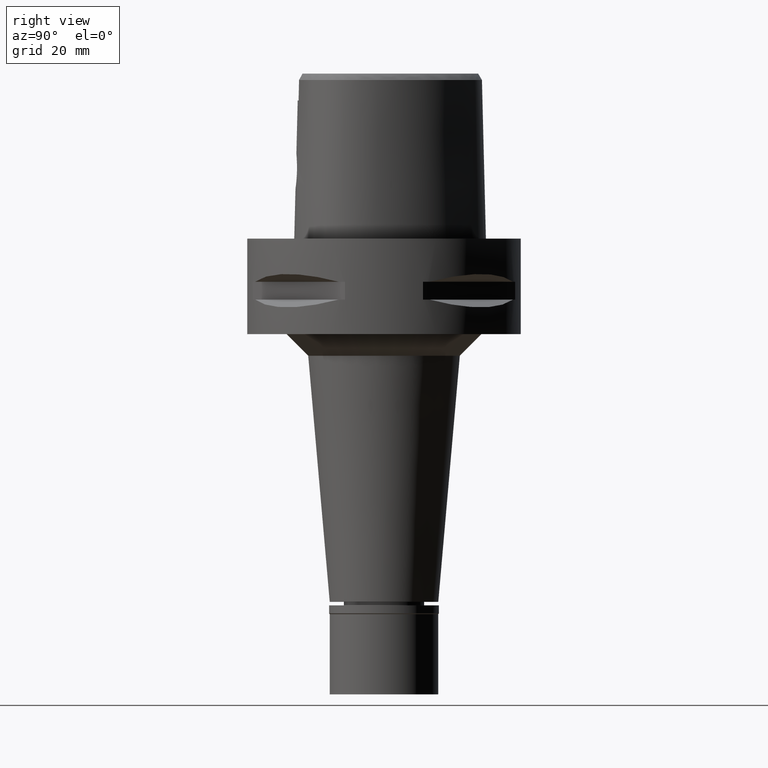
[diagram: clean part render]
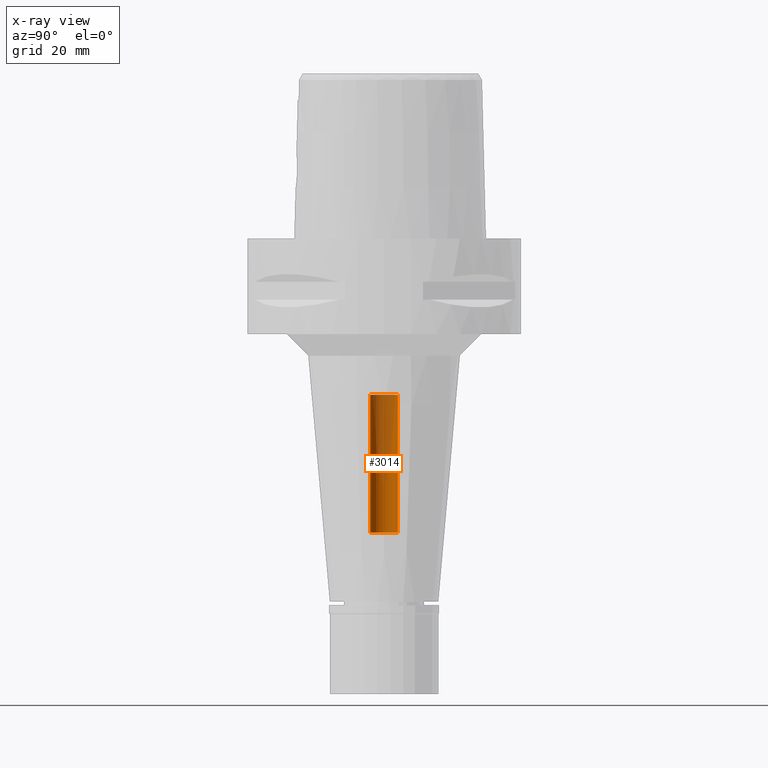
[diagram: x-ray — body ghosted, one internal face saturated and labeled with its STEP entity id]
A machine part, right view, then the same camera in x-ray: the body is ghosted and one INTERNAL B-rep face — a face not visible from any outside direction — is saturated and labeled: STEP entity #3014.
In plain terms, the highlighted cylindrical surface (edge-blend (fillet) strip) has radius 3.2 mm, axis along (0, 0, -1).
Its self-contained STEP definition (entity closure, byte-faithful):
#80 = CARTESIAN_POINT ( 'NONE',  ( 0.0000000000000000000, -3.200000000000000178, -67.79999999999999716 ) ) ;
#391 = DIRECTION ( 'NONE',  ( 0.0000000000000000000, 1.000000000000000000, 0.0000000000000000000 ) ) ;
#792 = VERTEX_POINT ( 'NONE', #3614 ) ;
#859 = VERTEX_POINT ( 'NONE', #4902 ) ;
#909 = CARTESIAN_POINT ( 'NONE',  ( 0.0000000000000000000, -3.200000000000000178, -36.00000000000000000 ) ) ;
#1068 = CARTESIAN_POINT ( 'NONE',  ( 0.0000000000000000000, 3.200000000000000178, -67.79999999999999716 ) ) ;
#1661 = LINE ( 'NONE', #80, #4301 ) ;
#1675 = EDGE_CURVE ( 'NONE', #3131, #859, #3320, .T. ) ;
#1704 = CIRCLE ( 'NONE', #4873, 3.200000000000000178 ) ;
#1770 = CYLINDRICAL_SURFACE ( 'NONE', #3666, 3.200000000000000178 ) ;
#2002 = EDGE_LOOP ( 'NONE', ( #4463, #3311, #3688, #3379 ) ) ;
#2178 = CARTESIAN_POINT ( 'NONE',  ( 0.0000000000000000000, 0.0000000000000000000, 4.939999999999999503 ) ) ;
#2511 = VECTOR ( 'NONE', #2956, 1000.000000000000000 ) ;
#2898 = DIRECTION ( 'NONE',  ( 0.0000000000000000000, 0.0000000000000000000, -1.000000000000000000 ) ) ;
#2956 = DIRECTION ( 'NONE',  ( 0.0000000000000000000, 0.0000000000000000000, 1.000000000000000000 ) ) ;
#2987 = AXIS2_PLACEMENT_3D ( 'NONE', #3461, #5057, #391 ) ;
#3014 = ADVANCED_FACE ( 'NONE', ( #3309 ), #1770, .F. ) ;
#3116 = EDGE_CURVE ( 'NONE', #792, #3131, #1704, .T. ) ;
#3131 = VERTEX_POINT ( 'NONE', #1068 ) ;
#3261 = EDGE_CURVE ( 'NONE', #859, #3518, #5039, .T. ) ;
#3285 = DIRECTION ( 'NONE',  ( 0.0000000000000000000, 0.0000000000000000000, -1.000000000000000000 ) ) ;
#3309 = FACE_OUTER_BOUND ( 'NONE', #2002, .T. ) ;
#3311 = ORIENTED_EDGE ( 'NONE', *, *, #4206, .F. ) ;
#3320 = LINE ( 'NONE', #3755, #2511 ) ;
#3379 = ORIENTED_EDGE ( 'NONE', *, *, #1675, .T. ) ;
#3461 = CARTESIAN_POINT ( 'NONE',  ( 0.0000000000000000000, 0.0000000000000000000, -36.00000000000000000 ) ) ;
#3518 = VERTEX_POINT ( 'NONE', #909 ) ;
#3614 = CARTESIAN_POINT ( 'NONE',  ( 0.0000000000000000000, -3.200000000000000178, -67.79999999999999716 ) ) ;
#3666 = AXIS2_PLACEMENT_3D ( 'NONE', #2178, #2898, #3715 ) ;
#3688 = ORIENTED_EDGE ( 'NONE', *, *, #3116, .T. ) ;
#3715 = DIRECTION ( 'NONE',  ( 0.0000000000000000000, -1.000000000000000000, 0.0000000000000000000 ) ) ;
#3755 = CARTESIAN_POINT ( 'NONE',  ( 0.0000000000000000000, 3.200000000000000178, -67.79999999999999716 ) ) ;
#4071 = DIRECTION ( 'NONE',  ( 0.0000000000000000000, 0.0000000000000000000, 1.000000000000000000 ) ) ;
#4206 = EDGE_CURVE ( 'NONE', #792, #3518, #1661, .T. ) ;
#4301 = VECTOR ( 'NONE', #4071, 1000.000000000000000 ) ;
#4463 = ORIENTED_EDGE ( 'NONE', *, *, #3261, .T. ) ;
#4510 = CARTESIAN_POINT ( 'NONE',  ( 0.0000000000000000000, 0.0000000000000000000, -67.79999999999999716 ) ) ;
#4873 = AXIS2_PLACEMENT_3D ( 'NONE', #4510, #3285, #4929 ) ;
#4902 = CARTESIAN_POINT ( 'NONE',  ( 0.0000000000000000000, 3.200000000000000178, -36.00000000000000000 ) ) ;
#4929 = DIRECTION ( 'NONE',  ( 0.0000000000000000000, -1.000000000000000000, 0.0000000000000000000 ) ) ;
#5039 = CIRCLE ( 'NONE', #2987, 3.200000000000000178 ) ;
#5057 = DIRECTION ( 'NONE',  ( 0.0000000000000000000, 0.0000000000000000000, 1.000000000000000000 ) ) ;